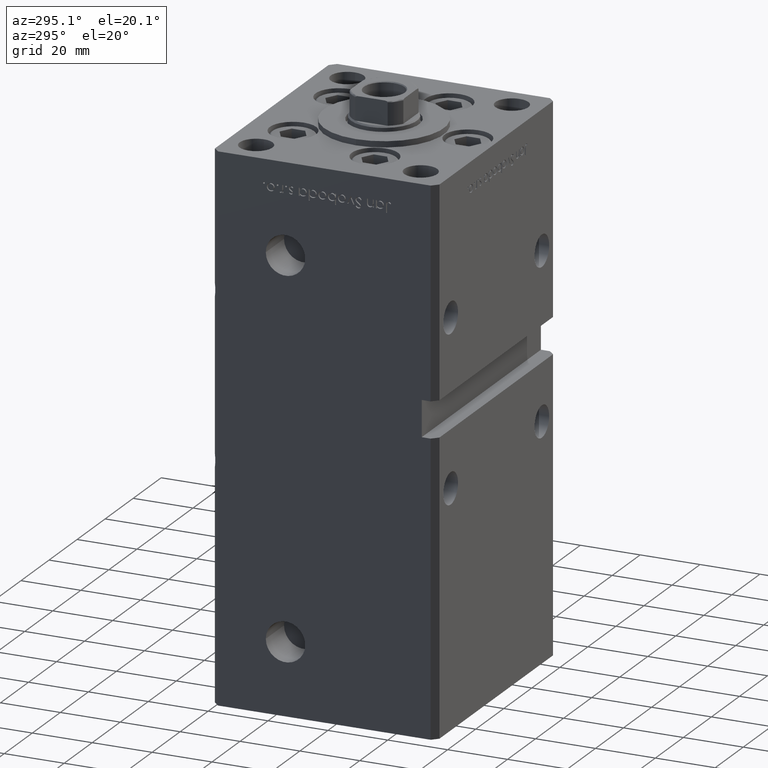
[diagram: clean part render]
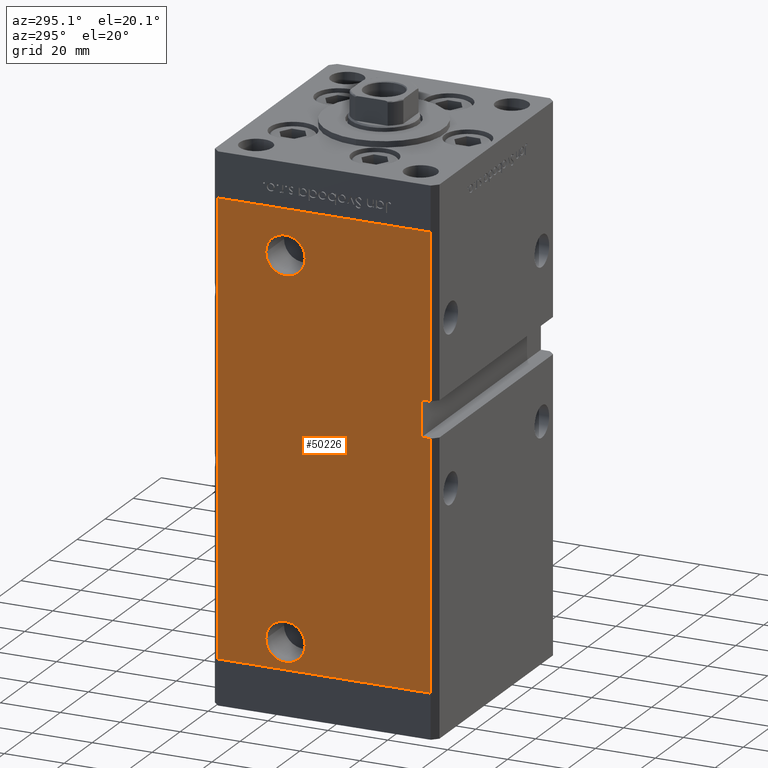
[diagram: same view with one face highlighted and labeled with its STEP entity id]
A machine part, auxiliary view. The second image highlights one B-rep face of the part: STEP entity #50226.
In plain terms, the highlighted planar face has unit normal (1, 0, 0).
Its self-contained STEP definition (entity closure, byte-faithful):
#322 = PLANE ( 'NONE',  #47494 ) ;
#1616 = ORIENTED_EDGE ( 'NONE', *, *, #17814, .F. ) ;
#2298 = AXIS2_PLACEMENT_3D ( 'NONE', #36558, #25254, #20169 ) ;
#2936 = VERTEX_POINT ( 'NONE', #26511 ) ;
#3092 = DIRECTION ( 'NONE',  ( -5.782411586589358625E-16, 0.000000000000000000, -1.000000000000000000 ) ) ;
#3954 = CIRCLE ( 'NONE', #9068, 6.580000000000015170 ) ;
#4141 = CARTESIAN_POINT ( 'NONE',  ( -42.50000000000001421, 35.50000000000000711, 148.5000000000000000 ) ) ;
#4178 = VERTEX_POINT ( 'NONE', #17531 ) ;
#4202 = DIRECTION ( 'NONE',  ( -1.000000000000000000, -2.275047181608927644E-16, 0.000000000000000000 ) ) ;
#4381 = VERTEX_POINT ( 'NONE', #49206 ) ;
#4415 = CARTESIAN_POINT ( 'NONE',  ( -42.49999999999998579, -32.50000000000000711, 94.00000000000000000 ) ) ;
#5133 = DIRECTION ( 'NONE',  ( -3.909236002201255146E-16, 1.000000000000000000, 0.000000000000000000 ) ) ;
#5249 = CARTESIAN_POINT ( 'NONE',  ( -42.50000000000000000, 12.99999999999999467, 133.5000000000000000 ) ) ;
#5311 = DIRECTION ( 'NONE',  ( -0.000000000000000000, -0.000000000000000000, -1.000000000000000000 ) ) ;
#6560 = DIRECTION ( 'NONE',  ( -0.000000000000000000, -1.000000000000000000, -0.000000000000000000 ) ) ;
#6911 = ORIENTED_EDGE ( 'NONE', *, *, #8388, .T. ) ;
#7224 = EDGE_CURVE ( 'NONE', #4178, #7247, #48777, .T. ) ;
#7229 = ORIENTED_EDGE ( 'NONE', *, *, #28258, .F. ) ;
#7247 = VERTEX_POINT ( 'NONE', #16524 ) ;
#8388 = EDGE_CURVE ( 'NONE', #45753, #17934, #15651, .T. ) ;
#9068 = AXIS2_PLACEMENT_3D ( 'NONE', #5249, #50399, #47166 ) ;
#10515 = VERTEX_POINT ( 'NONE', #4141 ) ;
#10893 = VECTOR ( 'NONE', #52541, 1000.000000000000000 ) ;
#10968 = CIRCLE ( 'NONE', #41000, 6.580000000000002736 ) ;
#11618 = DIRECTION ( 'NONE',  ( 3.909236002201255146E-16, -1.000000000000000000, 0.000000000000000000 ) ) ;
#11951 = DIRECTION ( 'NONE',  ( -0.000000000000000000, -1.000000000000000000, -0.000000000000000000 ) ) ;
#14528 = AXIS2_PLACEMENT_3D ( 'NONE', #28937, #4202, #39959 ) ;
#14720 = VECTOR ( 'NONE', #3092, 1000.000000000000000 ) ;
#14869 = VECTOR ( 'NONE', #11618, 1000.000000000000000 ) ;
#15160 = CARTESIAN_POINT ( 'NONE',  ( -42.49999999999998579, -32.50000000000000711, 82.00000000000000000 ) ) ;
#15386 = CARTESIAN_POINT ( 'NONE',  ( -42.50000000000001421, 35.50000000000000711, 0.000000000000000000 ) ) ;
#15417 = CARTESIAN_POINT ( 'NONE',  ( -42.50000000000001421, 35.50000000000000711, 148.5000000000000000 ) ) ;
#15651 = LINE ( 'NONE', #48454, #14869 ) ;
#16396 = CARTESIAN_POINT ( 'NONE',  ( -42.50000000000000000, 19.57999999999999829, 9.000000000000007105 ) ) ;
#16524 = CARTESIAN_POINT ( 'NONE',  ( -42.49999999999998579, -35.50000000000001421, 94.00000000000000000 ) ) ;
#17065 = ORIENTED_EDGE ( 'NONE', *, *, #30452, .F. ) ;
#17531 = CARTESIAN_POINT ( 'NONE',  ( -42.49999999999998579, -32.50000000000000711, 94.00000000000000000 ) ) ;
#17814 = EDGE_CURVE ( 'NONE', #2936, #17934, #46166, .T. ) ;
#17934 = VERTEX_POINT ( 'NONE', #23030 ) ;
#18049 = DIRECTION ( 'NONE',  ( -1.000000000000000000, -2.275047181608927644E-16, 0.000000000000000000 ) ) ;
#18466 = ORIENTED_EDGE ( 'NONE', *, *, #46530, .F. ) ;
#19170 = CARTESIAN_POINT ( 'NONE',  ( -42.50000000000000000, 19.58000000000000895, 133.5000000000000000 ) ) ;
#19448 = DIRECTION ( 'NONE',  ( 3.909236002201255146E-16, -1.000000000000000000, 0.000000000000000000 ) ) ;
#19483 = LINE ( 'NONE', #24035, #14720 ) ;
#20128 = VERTEX_POINT ( 'NONE', #19170 ) ;
#20169 = DIRECTION ( 'NONE',  ( 0.000000000000000000, -1.000000000000000000, 0.000000000000000000 ) ) ;
#20977 = EDGE_LOOP ( 'NONE', ( #7229, #27268 ) ) ;
#21426 = ORIENTED_EDGE ( 'NONE', *, *, #24531, .F. ) ;
#21513 = EDGE_CURVE ( 'NONE', #20128, #39872, #3954, .T. ) ;
#21514 = FACE_BOUND ( 'NONE', #35522, .T. ) ;
#21671 = VECTOR ( 'NONE', #11951, 1000.000000000000000 ) ;
#22601 = DIRECTION ( 'NONE',  ( 0.000000000000000000, -1.000000000000000000, 0.000000000000000000 ) ) ;
#23030 = CARTESIAN_POINT ( 'NONE',  ( -42.49999999999998579, -35.50000000000000711, 0.000000000000000000 ) ) ;
#23389 = EDGE_CURVE ( 'NONE', #10515, #45753, #36131, .T. ) ;
#23511 = CARTESIAN_POINT ( 'NONE',  ( -42.50000000000001421, 35.50000000000000711, 148.5000000000000000 ) ) ;
#23733 = LINE ( 'NONE', #15417, #47035 ) ;
#23883 = VECTOR ( 'NONE', #31998, 1000.000000000000000 ) ;
#23931 = EDGE_LOOP ( 'NONE', ( #1616, #21426, #18466, #30358, #38353, #33931, #32964, #6911 ) ) ;
#24035 = CARTESIAN_POINT ( 'NONE',  ( -42.49999999999998579, -32.50000000000000711, 94.00000000000000000 ) ) ;
#24531 = EDGE_CURVE ( 'NONE', #31420, #2936, #42569, .T. ) ;
#25254 = DIRECTION ( 'NONE',  ( -1.000000000000000000, -2.275047181608927644E-16, 0.000000000000000000 ) ) ;
#26511 = CARTESIAN_POINT ( 'NONE',  ( -42.49999999999998579, -35.49999999999996447, 82.00000000000000000 ) ) ;
#26532 = CIRCLE ( 'NONE', #14528, 6.580000000000002736 ) ;
#27268 = ORIENTED_EDGE ( 'NONE', *, *, #21513, .F. ) ;
#28258 = EDGE_CURVE ( 'NONE', #39872, #20128, #32328, .T. ) ;
#28937 = CARTESIAN_POINT ( 'NONE',  ( -42.50000000000000000, 12.99999999999999467, 9.000000000000007105 ) ) ;
#29827 = CARTESIAN_POINT ( 'NONE',  ( -42.50000000000000000, 6.419999999999991935, 9.000000000000007105 ) ) ;
#30358 = ORIENTED_EDGE ( 'NONE', *, *, #7224, .T. ) ;
#30452 = EDGE_CURVE ( 'NONE', #35608, #38620, #10968, .T. ) ;
#31288 = EDGE_CURVE ( 'NONE', #10515, #4381, #23733, .T. ) ;
#31420 = VERTEX_POINT ( 'NONE', #34715 ) ;
#31736 = CARTESIAN_POINT ( 'NONE',  ( -42.49999999999998579, -35.50000000000000711, 148.5000000000000000 ) ) ;
#31998 = DIRECTION ( 'NONE',  ( -0.000000000000000000, -0.000000000000000000, -1.000000000000000000 ) ) ;
#32328 = CIRCLE ( 'NONE', #2298, 6.580000000000015170 ) ;
#32836 = FACE_OUTER_BOUND ( 'NONE', #23931, .T. ) ;
#32964 = ORIENTED_EDGE ( 'NONE', *, *, #23389, .T. ) ;
#33613 = CARTESIAN_POINT ( 'NONE',  ( -42.50000000000001421, 35.50000000000000711, 148.5000000000000000 ) ) ;
#33931 = ORIENTED_EDGE ( 'NONE', *, *, #31288, .F. ) ;
#34715 = CARTESIAN_POINT ( 'NONE',  ( -42.49999999999998579, -32.50000000000000711, 82.00000000000000000 ) ) ;
#35522 = EDGE_LOOP ( 'NONE', ( #40150, #17065 ) ) ;
#35608 = VERTEX_POINT ( 'NONE', #16396 ) ;
#36131 = LINE ( 'NONE', #23511, #10893 ) ;
#36558 = CARTESIAN_POINT ( 'NONE',  ( -42.50000000000000000, 12.99999999999999467, 133.5000000000000000 ) ) ;
#37056 = EDGE_CURVE ( 'NONE', #4381, #7247, #51923, .T. ) ;
#38353 = ORIENTED_EDGE ( 'NONE', *, *, #37056, .F. ) ;
#38620 = VERTEX_POINT ( 'NONE', #29827 ) ;
#39872 = VERTEX_POINT ( 'NONE', #51811 ) ;
#39959 = DIRECTION ( 'NONE',  ( 0.000000000000000000, -1.000000000000000000, 0.000000000000000000 ) ) ;
#40045 = EDGE_CURVE ( 'NONE', #38620, #35608, #26532, .T. ) ;
#40150 = ORIENTED_EDGE ( 'NONE', *, *, #40045, .F. ) ;
#41000 = AXIS2_PLACEMENT_3D ( 'NONE', #42493, #18049, #22601 ) ;
#42391 = CARTESIAN_POINT ( 'NONE',  ( -42.49999999999998579, -35.50000000000000711, 148.5000000000000000 ) ) ;
#42493 = CARTESIAN_POINT ( 'NONE',  ( -42.50000000000000000, 12.99999999999999467, 9.000000000000007105 ) ) ;
#42569 = LINE ( 'NONE', #15160, #42644 ) ;
#42644 = VECTOR ( 'NONE', #6560, 1000.000000000000000 ) ;
#45753 = VERTEX_POINT ( 'NONE', #15386 ) ;
#45988 = FACE_BOUND ( 'NONE', #20977, .T. ) ;
#46166 = LINE ( 'NONE', #42391, #48580 ) ;
#46530 = EDGE_CURVE ( 'NONE', #4178, #31420, #19483, .T. ) ;
#47035 = VECTOR ( 'NONE', #19448, 1000.000000000000000 ) ;
#47166 = DIRECTION ( 'NONE',  ( 0.000000000000000000, -1.000000000000000000, 0.000000000000000000 ) ) ;
#47494 = AXIS2_PLACEMENT_3D ( 'NONE', #33613, #49238, #5133 ) ;
#48454 = CARTESIAN_POINT ( 'NONE',  ( -42.50000000000001421, 35.50000000000000711, 0.000000000000000000 ) ) ;
#48580 = VECTOR ( 'NONE', #5311, 1000.000000000000000 ) ;
#48777 = LINE ( 'NONE', #4415, #21671 ) ;
#49206 = CARTESIAN_POINT ( 'NONE',  ( -42.49999999999998579, -35.50000000000000711, 148.5000000000000000 ) ) ;
#49238 = DIRECTION ( 'NONE',  ( 1.000000000000000000, 3.909236002201255146E-16, -0.000000000000000000 ) ) ;
#50226 = ADVANCED_FACE ( 'NONE', ( #32836, #21514, #45988 ), #322, .F. ) ;
#50399 = DIRECTION ( 'NONE',  ( -1.000000000000000000, -2.275047181608927644E-16, 0.000000000000000000 ) ) ;
#51811 = CARTESIAN_POINT ( 'NONE',  ( -42.50000000000000000, 6.419999999999978613, 133.5000000000000000 ) ) ;
#51923 = LINE ( 'NONE', #31736, #23883 ) ;
#52541 = DIRECTION ( 'NONE',  ( -0.000000000000000000, -0.000000000000000000, -1.000000000000000000 ) ) ;